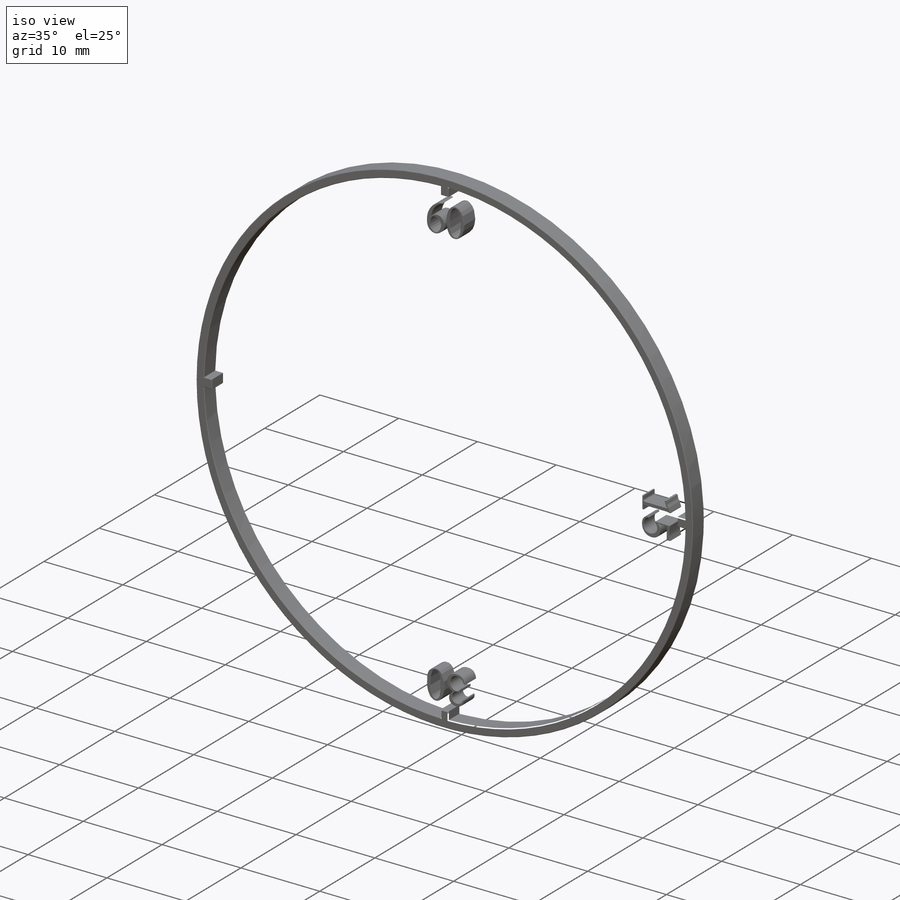
[diagram: iso view]
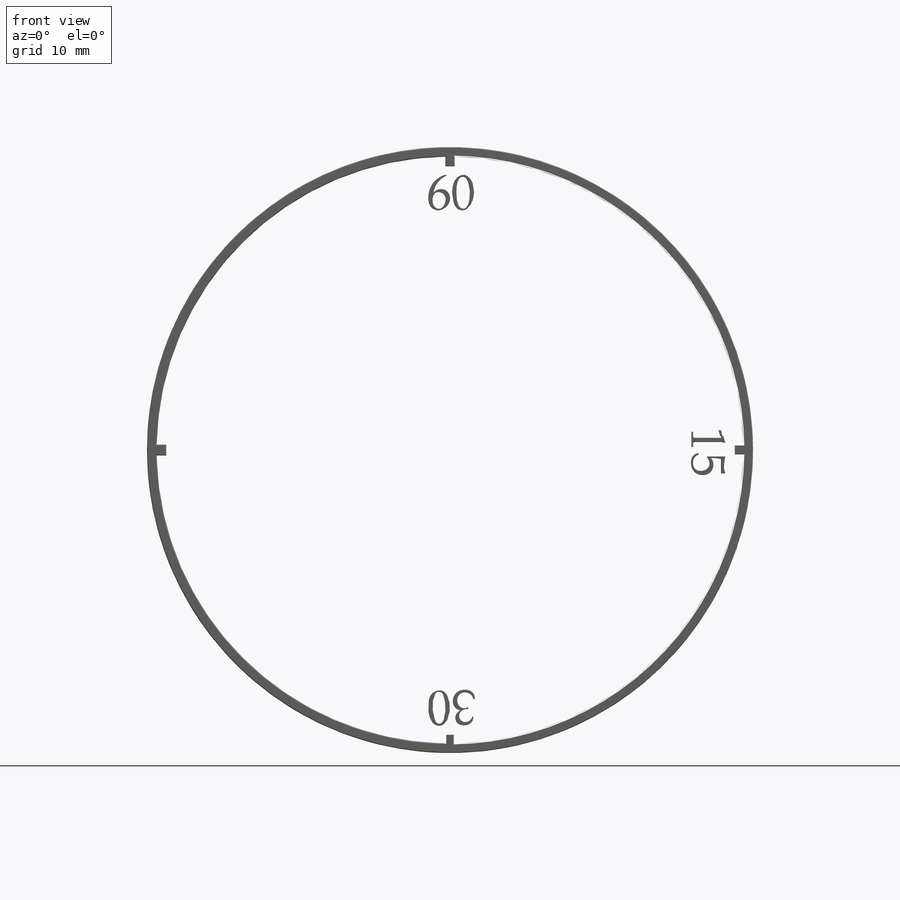
[diagram: front view]
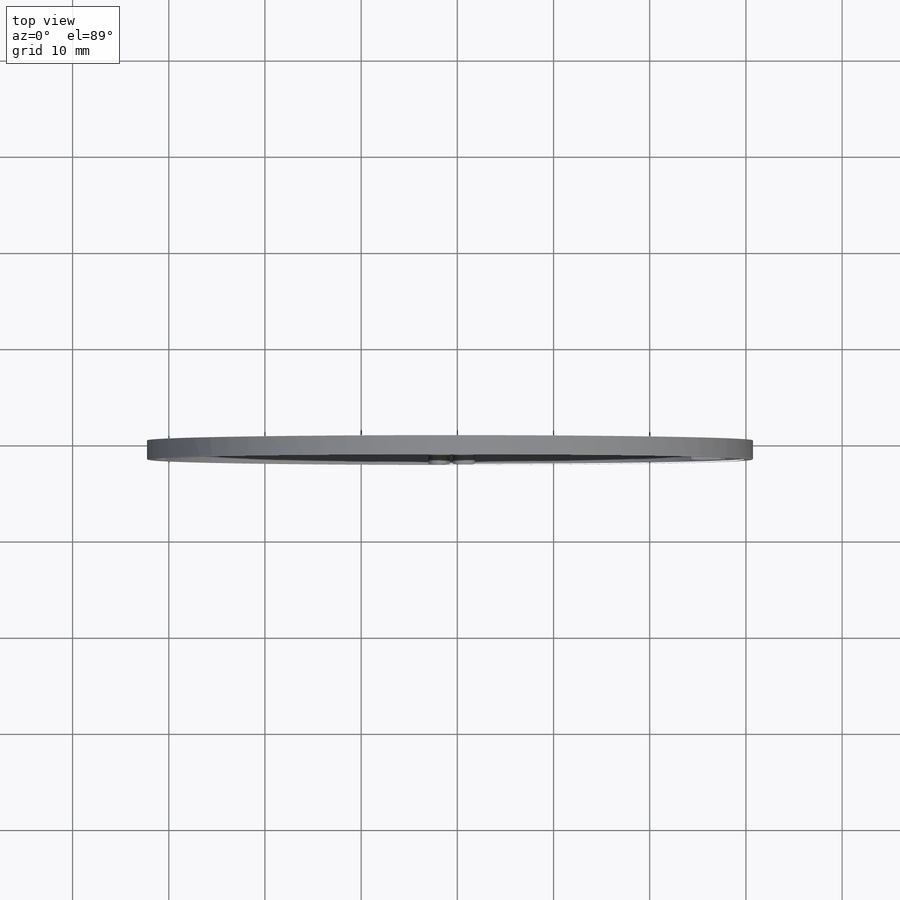
[diagram: top view]
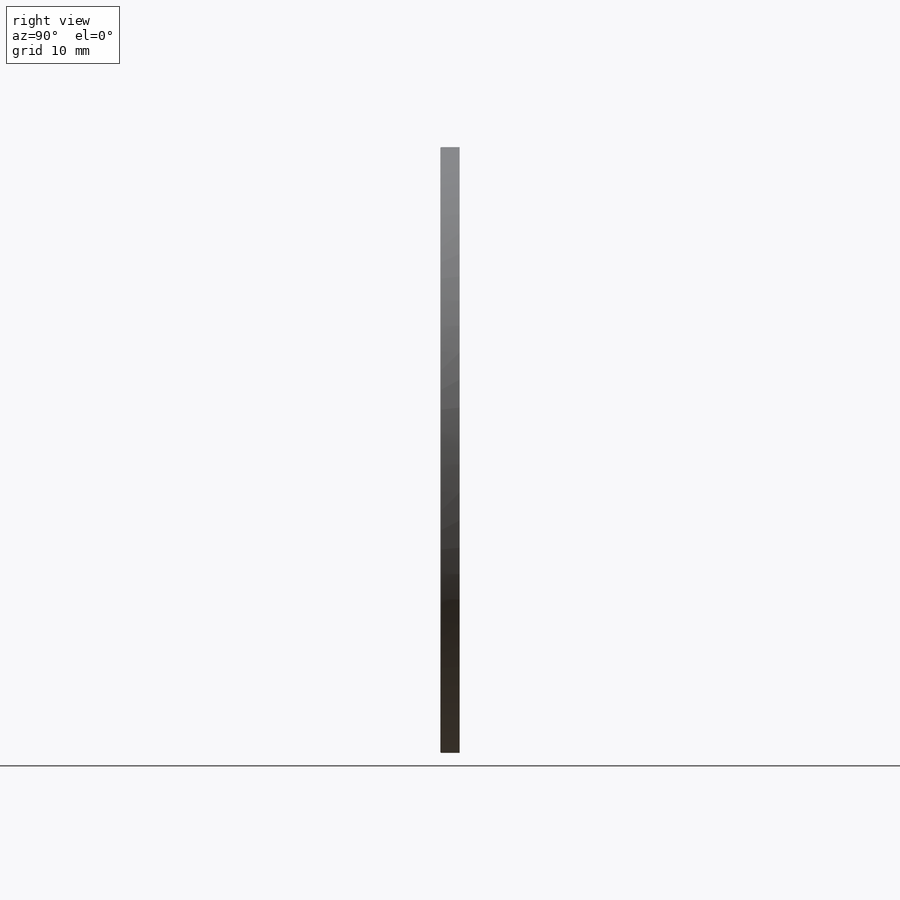
[diagram: right view]
SOLIDWORKS PART (.sldprt)
format: sldprt  version: not decoded by parser v0  size: 3,704,832 bytes
history: native  units: mm
features: reference x1611, fillet x9, plane x3, material x1, sketch x1, extrude x1 (+14 scaffold rows collapsed; 1 parser-record rows omitted)
feature tree (1641):
  scaffold x14  (default folders/planes/origin — collapsed)
  material  "Латунь"
  plane  "Спереди"
  plane  "Сверху"
  plane  "Справа"
  parser-record x1  (decoder bookkeeping rows leaked as tree rows — omitted from the tree; the rows remain in map.json)
  reference  "Импортированная кривая2"
  reference  "Импортированная кривая3"
  reference  "Импортированная кривая4"
  reference  "Импортированная кривая5"
  reference  "Импортированная кривая6"
  reference  "Импортированная кривая7"
  reference  "Импортированная кривая8"
  reference  "Импортированная кривая9"
  reference  "Импортированная кривая10"
  reference  "Импортированная кривая11"
  reference  "Импортированная кривая12"
  reference  "Импортированная кривая13"
  reference  "Импортированная кривая14"
  reference  "Импортированная кривая15"
  reference  "Импортированная кривая16"
  reference  "Импортированная кривая17"
  reference  "Импортированная кривая18"
  reference  "Импортированная кривая19"
  reference  "Импортированная кривая20"
  reference  "Импортированная кривая21"
  reference  "Импортированная кривая22"
  reference  "Импортированная кривая23"
  reference  "Импортированная кривая24"
  reference  "Импортированная кривая25"
  reference  "Импортированная кривая26"
  reference  "Импортированная кривая27"
  reference  "Импортированная кривая28"
  reference  "Импортированная кривая29"
  reference  "Импортированная кривая30"
  reference  "Импортированная кривая31"
  reference  "Импортированная кривая32"
  reference  "Импортированная кривая33"
  reference  "Импортированная кривая34"
  reference  "Импортированная кривая35"
  reference  "Импортированная кривая36"
  reference  "Импортированная кривая37"
  reference  "Импортированная кривая38"
  reference  "Импортированная кривая39"
  reference  "Импортированная кривая40"
  reference  "Импортированная кривая41"
  reference  "Импортированная кривая42"
  reference  "Импортированная кривая43"
  reference  "Импортированная кривая44"
  reference  "Импортированная кривая45"
  reference  "Импортированная кривая46"
  reference  "Импортированная кривая47"
  reference  "Импортированная кривая48"
  reference  "Импортированная кривая49"
  reference  "Импортированная кривая50"
  reference  "Импортированная кривая51"
  reference  "Импортированная кривая52"
  reference  "Импортированная кривая53"
  reference  "Импортированная кривая54"
  reference  "Импортированная кривая55"
  reference  "Импортированная кривая56"
  reference  "Импортированная кривая57"
  reference  "Импортированная кривая58"
  reference  "Импортированная кривая59"
  reference  "Импортированная кривая60"
  reference  "Импортированная кривая61"
  reference  "Импортированная кривая62"
  reference  "Импортированная кривая63"
  reference  "Импортированная кривая64"
  reference  "Импортированная кривая65"
  reference  "Импортированная кривая66"
  reference  "Импортированная кривая67"
  reference  "Импортированная кривая68"
  reference  "Импортированная кривая69"
  reference  "Импортированная кривая70"
  reference  "Импортированная кривая71"
  reference  "Импортированная кривая72"
  reference  "Импортированная кривая73"
  reference  "Импортированная кривая74"
  reference  "Импортированная кривая75"
  reference  "Импортированная кривая76"
  reference  "Импортированная кривая77"
  reference  "Импортированная кривая78"
  reference  "Импортированная кривая79"
  reference  "Импортированная кривая80"
  reference  "Импортированная кривая81"
  reference  "Импортированная кривая82"
  reference  "Импортированная кривая83"
  reference  "Импортированная кривая84"
  reference  "Импортированная кривая85"
  reference  "Импортированная кривая86"
  reference  "Импортированная кривая87"
  reference  "Импортированная кривая88"
  reference  "Импортированная кривая89"
  reference  "Импортированная кривая90"
  reference  "Импортированная кривая91"
  reference  "Импортированная кривая92"
  reference  "Импортированная кривая93"
  reference  "Импортированная кривая94"
  reference  "Импортированная кривая95"
  reference  "Импортированная кривая96"
  reference  "Импортированная кривая97"
  reference  "Импортированная кривая98"
  reference  "Импортированная кривая99"
  reference  "Импортированная кривая100"
  reference  "Импортированная кривая101"
  reference  "Импортированная кривая102"
  reference  "Импортированная кривая103"
  reference  "Импортированная кривая104"
  reference  "Импортированная кривая105"
  reference  "Импортированная кривая106"
  reference  "Импортированная кривая107"
  reference  "Импортированная кривая108"
  reference  "Импортированная кривая109"
  reference  "Импортированная кривая110"
  reference  "Импортированная кривая111"
  reference  "Импортированная кривая112"
  reference  "Импортированная кривая113"
  reference  "Импортированная кривая114"
  reference  "Импортированная кривая115"
  reference  "Импортированная кривая116"
  reference  "Импортированная кривая117"
  reference  "Импортированная кривая118"
  reference  "Импортированная кривая119"
  reference  "Импортированная кривая120"
  reference  "Импортированная кривая121"
  reference  "Импортированная кривая122"
  reference  "Импортированная кривая123"
  reference  "Импортированная кривая124"
  reference  "Импортированная кривая125"
  reference  "Импортированная кривая126"
  reference  "Импортированная кривая127"
  reference  "Импортированная кривая128"
  reference  "Импортированная кривая129"
  reference  "Импортированная кривая130"
  reference  "Импортированная кривая131"
  reference  "Импортированная кривая132"
  reference  "Импортированная кривая133"
  reference  "Импортированная кривая134"
  reference  "Импортированная кривая135"
  reference  "Импортированная кривая136"
  reference  "Импортированная кривая137"
  reference  "Импортированная кривая138"
  reference  "Импортированная кривая139"
  reference  "Импортированная кривая140"
  reference  "Импортированная кривая141"
  reference  "Импортированная кривая142"
  reference  "Импортированная кривая143"
  reference  "Импортированная кривая144"
  reference  "Импортированная кривая145"
  reference  "Импортированная кривая146"
  reference  "Импортированная кривая147"
  reference  "Импортированная кривая148"
  reference  "Импортированная кривая149"
  reference  "Импортированная кривая150"
  reference  "Импортированная кривая151"
  reference  "Импортированная кривая152"
  reference  "Импортированная кривая153"
  reference  "Импортированная кривая154"
  reference  "Импортированная кривая155"
  reference  "Импортированная кривая156"
  reference  "Импортированная кривая157"
  reference  "Импортированная кривая158"
  reference  "Импортированная кривая159"
  reference  "Импортированная кривая160"
  reference  "Импортированная кривая161"
  reference  "Импортированная кривая162"
  reference  "Импортированная кривая163"
  reference  "Импортированная кривая164"
  reference  "Импортированная кривая165"
  reference  "Импортированная кривая166"
  reference  "Импортированная кривая167"
  reference  "Импортированная кривая168"
  reference  "Импортированная кривая169"
  reference  "Импортированная кривая170"
  reference  "Импортированная кривая171"
  reference  "Импортированная кривая172"
  reference  "Импортированная кривая173"
  reference  "Импортированная кривая174"
  reference  "Импортированная кривая175"
  reference  "Импортированная кривая176"
  reference  "Импортированная кривая177"
  reference  "Импортированная кривая178"
  reference  "Импортированная кривая179"
  reference  "Импортированная кривая180"
  reference  "Импортированная кривая181"
  reference  "Импортированная кривая182"
  reference  "Импортированная кривая183"
  reference  "Импортированная кривая184"
  reference  "Импортированная кривая185"
  reference  "Импортированная кривая186"
  reference  "Импортированная кривая187"
  reference  "Импортированная кривая188"
  reference  "Импортированная кривая189"
  reference  "Импортированная кривая190"
  reference  "Импортированная кривая191"
  reference  "Импортированная кривая192"
  reference  "Импортированная кривая193"
  reference  "Импортированная кривая194"
  reference  "Импортированная кривая195"
  reference  "Импортированная кривая196"
  reference  "Импортированная кривая197"
  reference  "Импортированная кривая198"
  reference  "Импортированная кривая199"
  reference  "Импортированная кривая200"
  reference  "Импортированная кривая201"
  reference  "Импортированная кривая202"
  reference  "Импортированная кривая203"
  reference  "Импортированная кривая204"
  reference  "Импортированная кривая205"
  reference  "Импортированная кривая206"
  reference  "Импортированная кривая207"
  reference  "Импортированная кривая208"
  reference  "Импортированная кривая209"
  reference  "Импортированная кривая210"
  reference  "Импортированная кривая211"
  reference  "Импортированная кривая212"
  reference  "Импортированная кривая213"
  reference  "Импортированная кривая214"
  reference  "Импортированная кривая215"
  reference  "Импортированная кривая216"
  reference  "Импортированная кривая217"
  reference  "Импортированная кривая218"
  reference  "Импортированная кривая219"
  reference  "Импортированная кривая220"
  reference  "Импортированная кривая221"
  reference  "Импортированная кривая222"
  reference  "Импортированная кривая223"
  reference  "Импортированная кривая224"
  reference  "Импортированная кривая225"
  reference  "Импортированная кривая226"
  reference  "Импортированная кривая227"
  reference  "Импортированная кривая228"
  reference  "Импортированная кривая229"
  reference  "Импортированная кривая230"
  reference  "Импортированная кривая231"
  reference  "Импортированная кривая232"
  reference  "Импортированная кривая233"
  reference  "Импортированная кривая234"
  reference  "Импортированная кривая235"
  reference  "Импортированная кривая236"
  reference  "Импортированная кривая237"
  reference  "Импортированная кривая238"
  reference  "Импортированная кривая239"
  reference  "Импортированная кривая240"
  reference  "Импортированная кривая241"
  reference  "Импортированная кривая242"
  reference  "Импортированная кривая243"
  reference  "Импортированная кривая244"
  reference  "Импортированная кривая245"
  reference  "Импортированная кривая246"
  reference  "Импортированная кривая247"
  reference  "Импортированная кривая248"
  reference  "Импортированная кривая249"
  reference  "Импортированная кривая250"
  reference  "Импортированная кривая251"
  reference  "Импортированная кривая252"
  reference  "Импортированная кривая253"
  reference  "Импортированная кривая254"
  reference  "Импортированная кривая255"
  reference  "Импортированная кривая256"
  reference  "Импортированная кривая257"
  reference  "Импортированная кривая258"
  reference  "Импортированная кривая259"
  reference  "Импортированная кривая260"
  reference  "Импортированная кривая261"
  reference  "Импортированная кривая262"
  reference  "Импортированная кривая263"
  reference  "Импортированная кривая264"
  reference  "Импортированная кривая265"
  reference  "Импортированная кривая266"
  reference  "Импортированная кривая267"
  reference  "Импортированная кривая268"
  reference  "Импортированная кривая269"
  reference  "Импортированная кривая270"
  reference  "Импортированная кривая271"
  reference  "Импортированная кривая272"
  reference  "Импортированная кривая273"
  reference  "Импортированная кривая274"
  reference  "Импортированная кривая275"
  reference  "Импортированная кривая276"
  reference  "Импортированная кривая277"
  reference  "Импортированная кривая278"
  reference  "Импортированная кривая279"
  reference  "Импортированная кривая280"
  reference  "Импортированная кривая281"
  reference  "Импортированная кривая282"
  reference  "Импортированная кривая283"
  reference  "Импортированная кривая284"
  reference  "Импортированная кривая285"
  reference  "Импортированная кривая286"
  reference  "Импортированная кривая287"
  reference  "Импортированная кривая288"
  reference  "Импортированная кривая289"
  reference  "Импортированная кривая290"
  reference  "Импортированная кривая291"
  reference  "Импортированная кривая292"
  reference  "Импортированная кривая293"
  reference  "Импортированная кривая294"
  reference  "Импортированная кривая295"
  reference  "Импортированная кривая296"
  reference  "Импортированная кривая297"
  reference  "Импортированная кривая298"
  reference  "Импортированная кривая299"
  reference  "Импортированная кривая300"
  reference  "Импортированная кривая301"
  reference  "Импортированная кривая302"
  reference  "Импортированная кривая303"
  reference  "Импортированная кривая304"
  reference  "Импортированная кривая305"
  reference  "Импортированная кривая306"
  reference  "Импортированная кривая307"
  reference  "Импортированная кривая308"
  reference  "Импортированная кривая309"
  reference  "Импортированная кривая310"
  reference  "Импортированная кривая311"
  reference  "Импортированная кривая312"
  reference  "Импортированная кривая313"
  reference  "Импортированная кривая314"
  reference  "Импортированная кривая315"
  reference  "Импортированная кривая316"
  reference  "Импортированная кривая317"
  reference  "Импортированная кривая318"
  reference  "Импортированная кривая319"
  reference  "Импортированная кривая320"
  reference  "Импортированная кривая321"
  reference  "Импортированная кривая322"
  reference  "Импортированная кривая323"
  reference  "Импортированная кривая324"
  reference  "Импортированная кривая325"
  reference  "Импортированная кривая326"
  reference  "Импортированная кривая327"
  reference  "Импортированная кривая328"
  reference  "Импортированная кривая329"
  reference  "Импортированная кривая330"
  reference  "Импортированная кривая331"
  reference  "Импортированная кривая332"
  reference  "Импортированная кривая333"
  reference  "Импортированная кривая334"
  reference  "Импортированная кривая335"
  reference  "Импортированная кривая336"
  reference  "Импортированная кривая337"
  reference  "Импортированная кривая338"
  reference  "Импортированная кривая339"
  reference  "Импортированная кривая340"
  reference  "Импортированная кривая341"
  reference  "Импортированная кривая342"
  reference  "Импортированная кривая343"
  reference  "Импортированная кривая344"
  reference  "Импортированная кривая345"
  reference  "Импортированная кривая346"
  reference  "Импортированная кривая347"
  reference  "Импортированная кривая348"
  reference  "Импортированная кривая349"
  reference  "Импортированная кривая350"
  reference  "Импортированная кривая351"
  reference  "Импортированная кривая352"
  reference  "Импортированная кривая353"
  reference  "Импортированная кривая354"
  reference  "Импортированная кривая355"
  reference  "Импортированная кривая356"
  reference  "Импортированная кривая357"
  reference  "Импортированная кривая358"
  reference  "Импортированная кривая359"
  reference  "Импортированная кривая360"
  reference  "Импортированная кривая361"
  reference  "Импортированная кривая362"
  reference  "Импортированная кривая363"
  reference  "Импортированная кривая364"
  reference  "Импортированная кривая365"
  reference  "Импортированная кривая366"
  reference  "Импортированная кривая367"
  reference  "Импортированная кривая368"
  reference  "Импортированная кривая369"
  reference  "Импортированная кривая370"
  reference  "Импортированная кривая371"
  reference  "Импортированная кривая372"
  reference  "Импортированная кривая373"
  reference  "Импортированная кривая374"
  reference  "Импортированная кривая375"
  reference  "Импортированная кривая376"
  reference  "Импортированная кривая377"
  reference  "Импортированная кривая378"
  reference  "Импортированная кривая379"
  reference  "Импортированная кривая380"
  reference  "Импортированная кривая381"
  reference  "Импортированная кривая382"
  reference  "Импортированная кривая383"
  reference  "Импортированная кривая384"
  reference  "Импортированная кривая385"
  reference  "Импортированная кривая386"
  reference  "Импортированная кривая387"
  reference  "Импортированная кривая388"
  reference  "Импортированная кривая389"
  reference  "Импортированная кривая390"
  reference  "Импортированная кривая391"
  reference  "Импортированная кривая392"
  reference  "Импортированная кривая393"
  reference  "Импортированная кривая394"
  reference  "Импортированная кривая395"
  reference  "Импортированная кривая396"
  reference  "Импортированная кривая397"
  reference  "Импортированная кривая398"
  reference  "Импортированная кривая399"
  reference  "Импортированная кривая400"
  reference  "Импортированная кривая401"
  reference  "Импортированная кривая402"
  reference  "Импортированная кривая403"
  reference  "Импортированная кривая404"
  reference  "Импортированная кривая405"
  reference  "Импортированная кривая406"
  reference  "Импортированная кривая407"
  reference  "Импортированная кривая408"
  reference  "Импортированная кривая409"
  reference  "Импортированная кривая410"
  reference  "Импортированная кривая411"
  reference  "Импортированная кривая412"
  reference  "Импортированная кривая413"
  reference  "Импортированная кривая414"
  reference  "Импортированная кривая415"
  reference  "Импортированная кривая416"
  reference  "Импортированная кривая417"
  reference  "Импортированная кривая418"
  reference  "Импортированная кривая419"
  reference  "Импортированная кривая420"
  reference  "Импортированная кривая421"
  reference  "Импортированная кривая422"
  reference  "Импортированная кривая423"
  reference  "Импортированная кривая424"
  reference  "Импортированная кривая425"
  reference  "Импортированная кривая426"
  reference  "Импортированная кривая427"
  reference  "Импортированная кривая428"
  reference  "Импортированная кривая429"
  reference  "Импортированная кривая430"
  reference  "Импортированная кривая431"
  reference  "Импортированная кривая432"
  reference  "Импортированная кривая433"
  reference  "Импортированная кривая434"
  reference  "Импортированная кривая435"
  reference  "Импортированная кривая436"
  reference  "Импортированная кривая437"
  reference  "Импортированная кривая438"
  reference  "Импортированная кривая439"
  reference  "Импортированная кривая440"
  reference  "Импортированная кривая441"
  reference  "Импортированная кривая442"
  reference  "Импортированная кривая443"
  reference  "Импортированная кривая444"
  reference  "Импортированная кривая445"
  reference  "Импортированная кривая446"
  reference  "Импортированная кривая447"
  reference  "Импортированная кривая448"
  reference  "Импортированная кривая449"
  reference  "Импортированная кривая450"
  reference  "Импортированная кривая451"
  reference  "Импортированная кривая452"
  reference  "Импортированная кривая453"
  reference  "Импортированная кривая454"
  reference  "Импортированная кривая455"
  reference  "Импортированная кривая456"
  reference  "Импортированная кривая457"
  reference  "Импортированная кривая458"
  reference  "Импортированная кривая459"
  reference  "Импортированная кривая460"
  reference  "Импортированная кривая461"
  reference  "Импортированная кривая462"
  reference  "Импортированная кривая463"
  reference  "Импортированная кривая464"
  reference  "Импортированная кривая465"
  reference  "Импортированная кривая466"
  reference  "Импортированная кривая467"
  reference  "Импортированная кривая468"
  reference  "Импортированная кривая469"
  reference  "Импортированная кривая470"
  reference  "Импортированная кривая471"
  reference  "Импортированная кривая472"
  reference  "Импортированная кривая473"
  reference  "Импортированная кривая474"
  reference  "Импортированная кривая475"
  reference  "Импортированная кривая476"
  reference  "Импортированная кривая477"
  reference  "Импортированная кривая478"
  reference  "Импортированная кривая479"
  reference  "Импортированная кривая480"
  reference  "Импортированная кривая481"
  reference  "Импортированная кривая482"
  reference  "Импортированная кривая483"
  reference  "Импортированная кривая484"
  reference  "Импортированная кривая485"
  reference  "Импортированная кривая486"
  reference  "Импортированная кривая487"
  reference  "Импортированная кривая488"
  reference  "Импортированная кривая489"
  reference  "Импортированная кривая490"
  reference  "Импортированная кривая491"
  reference  "Импортированная кривая492"
  reference  "Импортированная кривая493"
  reference  "Импортированная кривая494"
  reference  "Импортированная кривая495"
  reference  "Импортированная кривая496"
  reference  "Импортированная кривая497"
  reference  "Импортированная кривая498"
  reference  "Импортированная кривая499"
  reference  "Импортированная кривая500"
  reference  "Импортированная кривая501"
  reference  "Импортированная кривая502"
  reference  "Импортированная кривая503"
  reference  "Импортированная кривая504"
  reference  "Импортированная кривая505"
  reference  "Импортированная кривая506"
  reference  "Импортированная кривая507"
  reference  "Импортированная кривая508"
  reference  "Импортированная кривая509"
  reference  "Импортированная кривая510"
  reference  "Импортированная кривая511"
  reference  "Импортированная кривая512"
  reference  "Импортированная кривая513"
  reference  "Импортированная кривая514"
  reference  "Импортированная кривая515"
  reference  "Импортированная кривая516"
  reference  "Импортированная кривая517"
  reference  "Импортированная кривая518"
  reference  "Импортированная кривая519"
  reference  "Импортированная кривая520"
  reference  "Импортированная кривая521"
  reference  "Импортированная кривая522"
  reference  "Импортированная кривая523"
  reference  "Импортированная кривая524"
  reference  "Импортированная кривая525"
  reference  "Импортированная кривая526"
  reference  "Импортированная кривая527"
  reference  "Импортированная кривая528"
  reference  "Импортированная кривая529"
  reference  "Импортированная кривая530"
  reference  "Импортированная кривая531"
  reference  "Импортированная кривая532"
  reference  "Импортированная кривая533"
  reference  "Импортированная кривая534"
  reference  "Импортированная кривая535"
  reference  "Импортированная кривая536"
  reference  "Импортированная кривая537"
  reference  "Импортированная кривая538"
  reference  "Импортированная кривая539"
  reference  "Импортированная кривая540"
  reference  "Импортированная кривая541"
  reference  "Импортированная кривая542"
  reference  "Импортированная кривая543"
  reference  "Импортированная кривая544"
  reference  "Импортированная кривая545"
  reference  "Импортированная кривая546"
  reference  "Импортированная кривая547"
  reference  "Импортированная кривая548"
  reference  "Импортированная кривая549"
  reference  "Импортированная кривая550"
  reference  "Импортированная кривая551"
  reference  "Импортированная кривая552"
  reference  "Импортированная кривая553"
  reference  "Импортированная кривая554"
  reference  "Импортированная кривая555"
  reference  "Импортированная кривая556"
  reference  "Импортированная кривая557"
  reference  "Импортированная кривая558"
  reference  "Импортированная кривая559"
  reference  "Импортированная кривая560"
  reference  "Импортированная кривая561"
  reference  "Импортированная кривая562"
  reference  "Импортированная кривая563"
  reference  "Импортированная кривая564"
  reference  "Импортированная кривая565"
  reference  "Импортированная кривая566"
  reference  "Импортированная кривая567"
  reference  "Импортированная кривая568"
  reference  "Импортированная кривая569"
  reference  "Импортированная кривая570"
  reference  "Импортированная кривая571"
  reference  "Импортированная кривая572"
  reference  "Импортированная кривая573"
  reference  "Импортированная кривая574"
  reference  "Импортированная кривая575"
  reference  "Импортированная кривая576"
  reference  "Импортированная кривая577"
  reference  "Импортированная кривая578"
  reference  "Импортированная кривая579"
  reference  "Импортированная кривая580"
  reference  "Импортированная кривая581"
  reference  "Импортированная кривая582"
  reference  "Импортированная кривая583"
  reference  "Импортированная кривая584"
  reference  "Импортированная кривая585"
  reference  "Импортированная кривая586"
  reference  "Импортированная кривая587"
  reference  "Импортированная кривая588"
  reference  "Импортированная кривая589"
  reference  "Импортированная кривая590"
  reference  "Импортированная кривая591"
  reference  "Импортированная кривая592"
  reference  "Импортированная кривая593"
  reference  "Импортированная кривая594"
  reference  "Импортированная кривая595"
  reference  "Импортированная кривая596"
  reference  "Импортированная кривая597"
  reference  "Импортированная кривая598"
  reference  "Импортированная кривая599"
  reference  "Импортированная кривая600"
  reference  "Импортированная кривая601"
  reference  "Импортированная кривая602"
  reference  "Импортированная кривая603"
  reference  "Импортированная кривая604"
  reference  "Импортированная кривая605"
  reference  "Импортированная кривая606"
  reference  "Импортированная кривая607"
  reference  "Импортированная кривая608"
  reference  "Импортированная кривая609"
  reference  "Импортированная кривая610"
  reference  "Импортированная кривая611"
  reference  "Импортированная кривая612"
  reference  "Импортированная кривая613"
  reference  "Импортированная кривая614"
  reference  "Импортированная кривая615"
  reference  "Импортированная кривая616"
  reference  "Импортированная кривая617"
  reference  "Импортированная кривая618"
  reference  "Импортированная кривая619"
  reference  "Импортированная кривая620"
  reference  "Импортированная кривая621"
  reference  "Импортированная кривая622"
  reference  "Импортированная кривая623"
  reference  "Импортированная кривая624"
  reference  "Импортированная кривая625"
  reference  "Импортированная кривая626"
  reference  "Импортированная кривая627"
  reference  "Импортированная кривая628"
  reference  "Импортированная кривая629"
  reference  "Импортированная кривая630"
  reference  "Импортированная кривая631"
  reference  "Импортированная кривая632"
  reference  "Импортированная кривая633"
  reference  "Импортированная кривая634"
  reference  "Импортированная кривая635"
  reference  "Импортированная кривая636"
  reference  "Импортированная кривая637"
  reference  "Импортированная кривая638"
  reference  "Импортированная кривая639"
  reference  "Импортированная кривая640"
  reference  "Импортированная кривая641"
  reference  "Импортированная кривая642"
  reference  "Импортированная кривая643"
  reference  "Импортированная кривая644"
  reference  "Импортированная кривая645"
  reference  "Импортированная кривая646"
  reference  "Импортированная кривая647"
  reference  "Импортированная кривая648"
  reference  "Импортированная кривая649"
  reference  "Импортированная кривая650"
  reference  "Импортированная кривая651"
  reference  "Импортированная кривая652"
  reference  "Импортированная кривая653"
  reference  "Импортированная кривая654"
  reference  "Импортированная кривая655"
  reference  "Импортированная кривая656"
  reference  "Импортированная кривая657"
  reference  "Импортированная кривая658"
  reference  "Импортированная кривая659"
  reference  "Импортированная кривая660"
  reference  "Импортированная кривая661"
  reference  "Импортированная кривая662"
  reference  "Импортированная кривая663"
  reference  "Импортированная кривая664"
  reference  "Импортированная кривая665"
  reference  "Импортированная кривая666"
  reference  "Импортированная кривая667"
  reference  "Импортированная кривая668"
  reference  "Импортированная кривая669"
  reference  "Импортированная кривая670"
  reference  "Импортированная кривая671"
  reference  "Импортированная кривая672"
  reference  "Импортированная кривая673"
  reference  "Импортированная кривая674"
  reference  "Импортированная кривая675"
  reference  "Импортированная кривая676"
  reference  "Импортированная кривая677"
  reference  "Импортированная кривая678"
  reference  "Импортированная кривая679"
  reference  "Импортированная кривая680"
  reference  "Импортированная кривая681"
  reference  "Импортированная кривая682"
  reference  "Импортированная кривая683"
  reference  "Импортированная кривая684"
  reference  "Импортированная кривая685"
  reference  "Импортированная кривая686"
  reference  "Импортированная кривая687"
  reference  "Импортированная кривая688"
  reference  "Импортированная кривая689"
  reference  "Импортированная кривая690"
  reference  "Импортированная кривая691"
  reference  "Импортированная кривая692"
  reference  "Импортированная кривая693"
  reference  "Импортированная кривая694"
  reference  "Импортированная кривая695"
  reference  "Импортированная кривая696"
  reference  "Импортированная кривая697"
  reference  "Импортированная кривая698"
  reference  "Импортированная кривая699"
  reference  "Импортированная кривая700"
  reference  "Импортированная кривая701"
  reference  "Импортированная кривая702"
  reference  "Импортированная кривая703"
  reference  "Импортированная кривая704"
  reference  "Импортированная кривая705"
  reference  "Импортированная кривая706"
  reference  "Импортированная кривая707"
  reference  "Импортированная кривая708"
  reference  "Импортированная кривая709"
  reference  "Импортированная кривая710"
  reference  "Импортированная кривая711"
  reference  "Импортированная кривая712"
  reference  "Импортированная кривая713"
  reference  "Импортированная кривая714"
  reference  "Импортированная кривая715"
  reference  "Импортированная кривая716"
  reference  "Импортированная кривая717"
  reference  "Импортированная кривая718"
  reference  "Импортированная кривая719"
  reference  "Импортированная кривая720"
  reference  "Импортированная кривая721"
  reference  "Импортированная кривая722"
  reference  "Импортированная кривая723"
  reference  "Импортированная кривая724"
  reference  "Импортированная кривая725"
  reference  "Импортированная кривая726"
  reference  "Импортированная кривая727"
  reference  "Импортированная кривая728"
  reference  "Импортированная кривая729"
  reference  "Импортированная кривая730"
  reference  "Импортированная кривая731"
  reference  "Импортированная кривая732"
  reference  "Импортированная кривая733"
  reference  "Импортированная кривая734"
  reference  "Импортированная кривая735"
  reference  "Импортированная кривая736"
  reference  "Импортированная кривая737"
  reference  "Импортированная кривая738"
  reference  "Импортированная кривая739"
  reference  "Импортированная кривая740"
  reference  "Импортированная кривая741"
  reference  "Импортированная кривая742"
  reference  "Импортированная кривая743"
  reference  "Импортированная кривая744"
  reference  "Импортированная кривая745"
  reference  "Импортированная кривая746"
  reference  "Импортированная кривая747"
  reference  "Импортированная кривая748"
  reference  "Импортированная кривая749"
  reference  "Импортированная кривая750"
  reference  "Импортированная кривая751"
  reference  "Импортированная кривая752"
  reference  "Импортированная кривая753"
  reference  "Импортированная кривая754"
  reference  "Импортированная кривая755"
  reference  "Импортированная кривая756"
  reference  "Импортированная кривая757"
  reference  "Импортированная кривая758"
  reference  "Импортированная кривая759"
  reference  "Импортированная кривая760"
  reference  "Импортированная кривая761"
  reference  "Импортированная кривая762"
  reference  "Импортированная кривая763"
  reference  "Импортированная кривая764"
  reference  "Импортированная кривая765"
  reference  "Импортированная кривая766"
  reference  "Импортированная кривая767"
  reference  "Импортированная кривая768"
  reference  "Импортированная кривая769"
  reference  "Импортированная кривая770"
  reference  "Импортированная кривая771"
  reference  "Импортированная кривая772"
  reference  "Импортированная кривая773"
  reference  "Импортированная кривая774"
  reference  "Импортированная кривая775"
  reference  "Импортированная кривая776"
  reference  "Импортированная кривая777"
  reference  "Импортированная кривая778"
  reference  "Импортированная кривая779"
  reference  "Импортированная кривая780"
  reference  "Импортированная кривая781"
  reference  "Импортированная кривая782"
  reference  "Импортированная кривая783"
  reference  "Импортированная кривая784"
  reference  "Импортированная кривая785"
  reference  "Импортированная кривая786"
  reference  "Импортированная кривая787"
  reference  "Импортированная кривая788"
  reference  "Импортированная кривая789"
  reference  "Импортированная кривая790"
  reference  "Импортированная кривая791"
  reference  "Импортированная кривая792"
  reference  "Импортированная кривая793"
  reference  "Импортированная кривая794"
  reference  "Импортированная кривая795"
  reference  "Импортированная кривая796"
  reference  "Импортированная кривая797"
  reference  "Импортированная кривая798"
  reference  "Импортированная кривая799"
  reference  "Импортированная кривая800"
  reference  "Импортированная кривая801"
  reference  "Импортированная кривая802"
  reference  "Импортированная кривая803"
  reference  "Импортированная кривая804"
  reference  "Импортированная кривая805"
  reference  "Импортированная кривая806"
  reference  "Импортированная кривая807"
  reference  "Импортированная кривая808"
  reference  "Импортированная кривая809"
  reference  "Импортированная кривая810"
  reference  "Импортированная кривая811"
  reference  "Импортированная кривая812"
  reference  "Импортированная кривая813"
  reference  "Импортированная кривая814"
  reference  "Импортированная кривая815"
  reference  "Импортированная кривая816"
  reference  "Импортированная кривая817"
  reference  "Импортированная кривая818"
  reference  "Импортированная кривая819"
  reference  "Импортированная кривая820"
  reference  "Импортированная кривая821"
  reference  "Импортированная кривая822"
  reference  "Импортированная кривая823"
  reference  "Импортированная кривая824"
  reference  "Импортированная кривая825"
  reference  "Импортированная кривая826"
  reference  "Импортированная кривая827"
  reference  "Импортированная кривая828"
  reference  "Импортированная кривая829"
  reference  "Импортированная кривая830"
  reference  "Импортированная кривая831"
  reference  "Импортированная кривая832"
  reference  "Импортированная кривая833"
  reference  "Импортированная кривая834"
  reference  "Импортированная кривая835"
  reference  "Импортированная кривая836"
  reference  "Импортированная кривая837"
  reference  "Импортированная кривая838"
  reference  "Импортированная кривая839"
  reference  "Импортированная кривая840"
  reference  "Импортированная кривая841"
  reference  "Импортированная кривая842"
  reference  "Импортированная кривая843"
  reference  "Импортированная кривая844"
  reference  "Импортированная кривая845"
  reference  "Импортированная кривая846"
  reference  "Импортированная кривая847"
  reference  "Импортированная кривая848"
  reference  "Импортированная кривая849"
  reference  "Импортированная кривая850"
  reference  "Импортированная кривая851"
  reference  "Импортированная кривая852"
  reference  "Импортированная кривая853"
  reference  "Импортированная кривая854"
  reference  "Импортированная кривая855"
  reference  "Импортированная кривая856"
  reference  "Импортированная кривая857"
  reference  "Импортированная кривая858"
  reference  "Импортированная кривая859"
  reference  "Импортированная кривая860"
  reference  "Импортированная кривая861"
  reference  "Импортированная кривая862"
  reference  "Импортированная кривая863"
  reference  "Импортированная кривая864"
  reference  "Импортированная кривая865"
  reference  "Импортированная кривая866"
  reference  "Импортированная кривая867"
  reference  "Импортированная кривая868"
  reference  "Импортированная кривая869"
  reference  "Импортированная кривая870"
  reference  "Импортированная кривая871"
  reference  "Импортированная кривая872"
  reference  "Импортированная кривая873"
  reference  "Импортированная кривая874"
  reference  "Импортированная кривая875"
  reference  "Импортированная кривая876"
  reference  "Импортированная кривая877"
  reference  "Импортированная кривая878"
  reference  "Импортированная кривая879"
  reference  "Импортированная кривая880"
  reference  "Импортированная кривая881"
  reference  "Импортированная кривая882"
  reference  "Импортированная кривая883"
  reference  "Импортированная кривая884"
  reference  "Импортированная кривая885"
  reference  "Импортированная кривая886"
  reference  "Импортированная кривая887"
  reference  "Импортированная кривая888"
  reference  "Импортированная кривая889"
  reference  "Импортированная кривая890"
  reference  "Импортированная кривая891"
  reference  "Импортированная кривая892"
  reference  "Импортированная кривая893"
  reference  "Импортированная кривая894"
  reference  "Импортированная кривая895"
  reference  "Импортированная кривая896"
  reference  "Импортированная кривая897"
  reference  "Импортированная кривая898"
  reference  "Импортированная кривая899"
  reference  "Импортированная кривая900"
  reference  "Импортированная кривая901"
  reference  "Импортированная кривая902"
  reference  "Импортированная кривая903"
  reference  "Импортированная кривая904"
  reference  "Импортированная кривая905"
  reference  "Импортированная кривая906"
  reference  "Импортированная кривая907"
  reference  "Импортированная кривая908"
  reference  "Импортированная кривая909"
  reference  "Импортированная кривая910"
  reference  "Импортированная кривая911"
  reference  "Импортированная кривая912"
  reference  "Импортированная кривая913"
  reference  "Импортированная кривая914"
  reference  "Импортированная кривая915"
  reference  "Импортированная кривая916"
  reference  "Импортированная кривая917"
  reference  "Импортированная кривая918"
  reference  "Импортированная кривая919"
  reference  "Импортированная кривая920"
  reference  "Импортированная кривая921"
  reference  "Импортированная кривая922"
  reference  "Импортированная кривая923"
  reference  "Импортированная кривая924"
  reference  "Импортированная кривая925"
  reference  "Импортированная кривая926"
  reference  "Импортированная кривая927"
  reference  "Импортированная кривая928"
  reference  "Импортированная кривая929"
  reference  "Импортированная кривая930"
  reference  "Импортированная кривая931"
  reference  "Импортированная кривая932"
  reference  "Импортированная кривая933"
  reference  "Импортированная кривая934"
  reference  "Импортированная кривая935"
  reference  "Импортированная кривая936"
  reference  "Импортированная кривая937"
  reference  "Импортированная кривая938"
  reference  "Импортированная кривая939"
  reference  "Импортированная кривая940"
  reference  "Импортированная кривая941"
  reference  "Импортированная кривая942"
  reference  "Импортированная кривая943"
  reference  "Импортированная кривая944"
  reference  "Импортированная кривая945"
  reference  "Импортированная кривая946"
  reference  "Импортированная кривая947"
  reference  "Импортированная кривая948"
  reference  "Импортированная кривая949"
  reference  "Импортированная кривая950"
  reference  "Импортированная кривая951"
  reference  "Импортированная кривая952"
  reference  "Импортированная кривая953"
  reference  "Импортированная кривая954"
  reference  "Импортированная кривая955"
  reference  "Импортированная кривая956"
  reference  "Импортированная кривая957"
  reference  "Импортированная кривая958"
  reference  "Импортированная кривая959"
  reference  "Импортированная кривая960"
  reference  "Импортированная кривая961"
  reference  "Импортированная кривая962"
  reference  "Импортированная кривая963"
  reference  "Импортированная кривая964"
  reference  "Импортированная кривая965"
  reference  "Импортированная кривая966"
  reference  "Импортированная кривая967"
  reference  "Импортированная кривая968"
  reference  "Импортированная кривая969"
  reference  "Импортированная кривая970"
  reference  "Импортированная кривая971"
  reference  "Импортированная кривая972"
  reference  "Импортированная кривая973"
  reference  "Импортированная кривая974"
  reference  "Импортированная кривая975"
  reference  "Импортированная кривая976"
  reference  "Импортированная кривая977"
  reference  "Импортированная кривая978"
  reference  "Импортированная кривая979"
  reference  "Импортированная кривая980"
  reference  "Импортированная кривая981"
  reference  "Импортированная кривая982"
  reference  "Импортированная кривая983"
  reference  "Импортированная кривая984"
  reference  "Импортированная кривая985"
  reference  "Импортированная кривая986"
  reference  "Импортированная кривая987"
  reference  "Импортированная кривая988"
  reference  "Импортированная кривая989"
  reference  "Импортированная кривая990"
  reference  "Импортированная кривая991"
  reference  "Импортированная кривая992"
  reference  "Импортированная кривая993"
  reference  "Импортированная кривая994"
  reference  "Импортированная кривая995"
  reference  "Импортированная кривая996"
  reference  "Импортированная кривая997"
  reference  "Импортированная кривая998"
  reference  "Импортированная кривая999"
  reference  "Импортированная кривая1000"
  reference  "Импортированная кривая1001"
  reference  "Импортированная кривая1002"
  reference  "Импортированная кривая1003"
  reference  "Импортированная кривая1004"
  reference  "Импортированная кривая1005"
  reference  "Импортированная кривая1006"
  reference  "Импортированная кривая1007"
  reference  "Импортированная кривая1008"
  reference  "Импортированная кривая1009"
  reference  "Импортированная кривая1010"
  reference  "Импортированная кривая1011"
  reference  "Импортированная кривая1012"
  reference  "Импортированная кривая1013"
  reference  "Импортированная кривая1014"
  reference  "Импортированная кривая1015"
  reference  "Импортированная кривая1016"
  reference  "Импортированная кривая1017"
  reference  "Импортированная кривая1018"
  reference  "Импортированная кривая1019"
  reference  "Импортированная кривая1020"
  reference  "Импортированная кривая1021"
  reference  "Импортированная кривая1022"
  reference  "Импортированная кривая1023"
  reference  "Импортированная кривая1024"
  reference  "Импортированная кривая1025"
  reference  "Импортированная кривая1026"
  reference  "Импортированная кривая1027"
  reference  "Импортированная кривая1028"
  reference  "Импортированная кривая1029"
  reference  "Импортированная кривая1030"
  reference  "Импортированная кривая1031"
  reference  "Импортированная кривая1032"
  reference  "Импортированная кривая1033"
  reference  "Импортированная кривая1034"
  reference  "Импортированная кривая1035"
  reference  "Импортированная кривая1036"
  reference  "Импортированная кривая1037"
  reference  "Импортированная кривая1038"
  reference  "Импортированная кривая1039"
  reference  "Импортированная кривая1040"
  reference  "Импортированная кривая1041"
  reference  "Импортированная кривая1042"
  reference  "Импортированная кривая1043"
  reference  "Импортированная кривая1044"
  reference  "Импортированная кривая1045"
  reference  "Импортированная кривая1046"
  reference  "Импортированная кривая1047"
  reference  "Импортированная кривая1048"
  reference  "Импортированная кривая1049"
  reference  "Импортированная кривая1050"
  reference  "Импортированная кривая1051"
  reference  "Импортированная кривая1052"
  reference  "Импортированная кривая1053"
  reference  "Импортированная кривая1054"
  reference  "Импортированная кривая1055"
  reference  "Импортированная кривая1056"
  reference  "Импортированная кривая1057"
  reference  "Импортированная кривая1058"
  reference  "Импортированная кривая1059"
  reference  "Импортированная кривая1060"
  reference  "Импортированная кривая1061"
  reference  "Импортированная кривая1062"
  reference  "Импортированная кривая1063"
  reference  "Импортированная кривая1064"
  reference  "Импортированная кривая1065"
  reference  "Импортированная кривая1066"
  reference  "Импортированная кривая1067"
  reference  "Импортированная кривая1068"
  reference  "Импортированная кривая1069"
  reference  "Импортированная кривая1070"
  reference  "Импортированная кривая1071"
  reference  "Импортированная кривая1072"
  reference  "Импортированная кривая1073"
  reference  "Импортированная кривая1074"
  reference  "Импортированная кривая1075"
  reference  "Импортированная кривая1076"
  reference  "Импортированная кривая1077"
  reference  "Импортированная кривая1078"
  reference  "Импортированная кривая1079"
  reference  "Импортированная кривая1080"
  reference  "Импортированная кривая1081"
  reference  "Импортированная кривая1082"
  reference  "Импортированная кривая1083"
  reference  "Импортированная кривая1084"
  reference  "Импортированная кривая1085"
  reference  "Импортированная кривая1086"
  reference  "Импортированная кривая1087"
  reference  "Импортированная кривая1088"
  reference  "Импортированная кривая1089"
  reference  "Импортированная кривая1090"
  reference  "Импортированная кривая1091"
  reference  "Импортированная кривая1092"
  reference  "Импортированная кривая1093"
  reference  "Импортированная кривая1094"
  reference  "Импортированная кривая1095"
  reference  "Импортированная кривая1096"
  reference  "Импортированная кривая1097"
  reference  "Импортированная кривая1098"
  reference  "Импортированная кривая1099"
  reference  "Импортированная кривая1100"
  reference  "Импортированная кривая1101"
  reference  "Импортированная кривая1102"
  reference  "Импортированная кривая1103"
  reference  "Импортированная кривая1104"
  reference  "Импортированная кривая1105"
  reference  "Импортированная кривая1106"
  reference  "Импортированная кривая1107"
  reference  "Импортированная кривая1108"
  reference  "Импортированная кривая1109"
  reference  "Импортированная кривая1110"
  reference  "Импортированная кривая1111"
  reference  "Импортированная кривая1112"
  reference  "Импортированная кривая1113"
  reference  "Импортированная кривая1114"
  reference  "Импортированная кривая1115"
  reference  "Импортированная кривая1116"
  reference  "Импортированная кривая1117"
  reference  "Импортированная кривая1118"
  reference  "Импортированная кривая1119"
  reference  "Импортированная кривая1120"
  reference  "Импортированная кривая1121"
  reference  "Импортированная кривая1122"
  reference  "Импортированная кривая1123"
  reference  "Импортированная кривая1124"
  reference  "Импортированная кривая1125"
  reference  "Импортированная кривая1126"
  reference  "Импортированная кривая1127"
  reference  "Импортированная кривая1128"
  reference  "Импортированная кривая1129"
  reference  "Импортированная кривая1130"
  reference  "Импортированная кривая1131"
  reference  "Импортированная кривая1132"
  reference  "Импортированная кривая1133"
  reference  "Импортированная кривая1134"
  reference  "Импортированная кривая1135"
  reference  "Импортированная кривая1136"
  reference  "Импортированная кривая1137"
  reference  "Импортированная кривая1138"
  reference  "Импортированная кривая1139"
  reference  "Импортированная кривая1140"
  reference  "Импортированная кривая1141"
  reference  "Импортированная кривая1142"
  reference  "Импортированная кривая1143"
  reference  "Импортированная кривая1144"
  reference  "Импортированная кривая1145"
  reference  "Импортированная кривая1146"
  reference  "Импортированная кривая1147"
  reference  "Импортированная кривая1148"
  reference  "Импортированная кривая1149"
  reference  "Импортированная кривая1150"
  reference  "Импортированная кривая1151"
  reference  "Импортированная кривая1152"
  reference  "Импортированная кривая1153"
  reference  "Импортированная кривая1154"
  reference  "Импортированная кривая1155"
  reference  "Импортированная кривая1156"
  reference  "Импортированная кривая1157"
  reference  "Импортированная кривая1158"
  reference  "Импортированная кривая1159"
  reference  "Импортированная кривая1160"
  reference  "Импортированная кривая1161"
  reference  "Импортированная кривая1162"
  reference  "Импортированная кривая1163"
  reference  "Импортированная кривая1164"
  reference  "Импортированная кривая1165"
  reference  "Импортированная кривая1166"
  reference  "Импортированная кривая1167"
  reference  "Импортированная кривая1168"
  reference  "Импортированная кривая1169"
  reference  "Импортированная кривая1170"
  reference  "Импортированная кривая1171"
  reference  "Импортированная кривая1172"
  reference  "Импортированная кривая1173"
  reference  "Импортированная кривая1174"
  reference  "Импортированная кривая1175"
  reference  "Импортированная кривая1176"
  reference  "Импортированная кривая1177"
  reference  "Импортированная кривая1178"
  reference  "Импортированная кривая1179"
  reference  "Импортированная кривая1180"
  reference  "Импортированная кривая1181"
  reference  "Импортированная кривая1182"
  reference  "Импортированная кривая1183"
  reference  "Импортированная кривая1184"
  reference  "Импортированная кривая1185"
  reference  "Импортированная кривая1186"
  reference  "Импортированная кривая1187"
  reference  "Импортированная кривая1188"
  reference  "Импортированная кривая1189"
  reference  "Импортированная кривая1190"
  reference  "Импортированная кривая1191"
  reference  "Импортированная кривая1192"
  reference  "Импортированная кривая1193"
  reference  "Импортированная кривая1194"
  reference  "Импортированная кривая1195"
  reference  "Импортированная кривая1196"
  reference  "Импортированная кривая1197"
  reference  "Импортированная кривая1198"
  reference  "Импортированная кривая1199"
  reference  "Импортированная кривая1200"
  reference  "Импортированная кривая1201"
  reference  "Импортированная кривая1202"
  reference  "Импортированная кривая1203"
  reference  "Импортированная кривая1204"
  reference  "Импортированная кривая1205"
  reference  "Импортированная кривая1206"
  reference  "Импортированная кривая1207"
  reference  "Импортированная кривая1208"
  reference  "Импортированная кривая1209"
  reference  "Импортированная кривая1210"
  reference  "Импортированная кривая1211"
  reference  "Импортированная кривая1212"
  reference  "Импортированная кривая1213"
  reference  "Импортированная кривая1214"
  reference  "Импортированная кривая1215"
  reference  "Импортированная кривая1216"
  reference  "Импортированная кривая1217"
  reference  "Импортированная кривая1218"
  reference  "Импортированная кривая1219"
  reference  "Импортированная кривая1220"
  reference  "Импортированная кривая1221"
  reference  "Импортированная кривая1222"
  reference  "Импортированная кривая1223"
  reference  "Импортированная кривая1224"
  reference  "Импортированная кривая1225"
  reference  "Импортированная кривая1226"
  reference  "Импортированная кривая1227"
  reference  "Импортированная кривая1228"
  reference  "Импортированная кривая1229"
  reference  "Импортированная кривая1230"
  reference  "Импортированная кривая1231"
  reference  "Импортированная кривая1232"
  reference  "Импортированная кривая1233"
  reference  "Импортированная кривая1234"
  reference  "Импортированная кривая1235"
  reference  "Импортированная кривая1236"
  reference  "Импортированная кривая1237"
  reference  "Импортированная кривая1238"
  reference  "Импортированная кривая1239"
  reference  "Импортированная кривая1240"
  reference  "Импортированная кривая1241"
  reference  "Импортированная кривая1242"
  reference  "Импортированная кривая1243"
  reference  "Импортированная кривая1244"
  reference  "Импортированная кривая1245"
  reference  "Импортированная кривая1246"
  reference  "Импортированная кривая1247"
  reference  "Импортированная кривая1248"
  reference  "Импортированная кривая1249"
  reference  "Импортированная кривая1250"
  reference  "Импортированная кривая1251"
  reference  "Импортированная кривая1252"
  reference  "Импортированная кривая1253"
  reference  "Импортированная кривая1254"
  reference  "Импортированная кривая1255"
  reference  "Импортированная кривая1256"
  reference  "Импортированная кривая1257"
  reference  "Импортированная кривая1258"
  reference  "Импортированная кривая1259"
  reference  "Импортированная кривая1260"
  reference  "Импортированная кривая1261"
  reference  "Импортированная кривая1262"
  reference  "Импортированная кривая1263"
  reference  "Импортированная кривая1264"
  reference  "Импортированная кривая1265"
  reference  "Импортированная кривая1266"
  reference  "Импортированная кривая1267"
  reference  "Импортированная кривая1268"
  reference  "Импортированная кривая1269"
  reference  "Импортированная кривая1270"
  reference  "Импортированная кривая1271"
  reference  "Импортированная кривая1272"
  reference  "Импортированная кривая1273"
  reference  "Импортированная кривая1274"
  reference  "Импортированная кривая1275"
  reference  "Импортированная кривая1276"
  reference  "Импортированная кривая1277"
  reference  "Импортированная кривая1278"
  reference  "Импортированная кривая1279"
  reference  "Импортированная кривая1280"
  reference  "Импортированная кривая1281"
  reference  "Импортированная кривая1282"
  reference  "Импортированная кривая1283"
  reference  "Импортированная кривая1284"
  reference  "Импортированная кривая1285"
  reference  "Импортированная кривая1286"
  reference  "Импортированная кривая1287"
  reference  "Импортированная кривая1288"
  reference  "Импортированная кривая1289"
  reference  "Импортированная кривая1290"
  reference  "Импортированная кривая1291"
  reference  "Импортированная кривая1292"
  reference  "Импортированная кривая1293"
  reference  "Импортированная кривая1294"
  reference  "Импортированная кривая1295"
  reference  "Импортированная кривая1296"
  reference  "Импортированная кривая1297"
  reference  "Импортированная кривая1298"
  reference  "Импортированная кривая1299"
  reference  "Импортированная кривая1300"
  reference  "Импортированная кривая1301"
  reference  "Импортированная кривая1302"
  reference  "Импортированная кривая1303"
  reference  "Импортированная кривая1304"
  reference  "Импортированная кривая1305"
  reference  "Импортированная кривая1306"
  reference  "Импортированная кривая1307"
  reference  "Импортированная кривая1308"
  reference  "Импортированная кривая1309"
  reference  "Импортированная кривая1310"
  reference  "Импортированная кривая1311"
  reference  "Импортированная кривая1312"
  reference  "Импортированная кривая1313"
  reference  "Импортированная кривая1314"
  reference  "Импортированная кривая1315"
  reference  "Импортированная кривая1316"
  reference  "Импортированная кривая1317"
  reference  "Импортированная кривая1318"
  reference  "Импортированная кривая1319"
  reference  "Импортированная кривая1320"
  reference  "Импортированная кривая1321"
  reference  "Импортированная кривая1322"
  reference  "Импортированная кривая1323"
  reference  "Импортированная кривая1324"
  reference  "Импортированная кривая1325"
  reference  "Импортированная кривая1326"
  reference  "Импортированная кривая1327"
  reference  "Импортированная кривая1328"
  reference  "Импортированная кривая1329"
  reference  "Импортированная кривая1330"
  reference  "Импортированная кривая1331"
  reference  "Импортированная кривая1332"
  reference  "Импортированная кривая1333"
  reference  "Импортированная кривая1334"
  reference  "Импортированная кривая1335"
  reference  "Импортированная кривая1336"
  reference  "Импортированная кривая1337"
  reference  "Импортированная кривая1338"
  reference  "Импортированная кривая1339"
  reference  "Импортированная кривая1340"
  reference  "Импортированная кривая1341"
  reference  "Импортированная кривая1342"
  reference  "Импортированная кривая1343"
  reference  "Импортированная кривая1344"
  reference  "Импортированная кривая1345"
  reference  "Импортированная кривая1346"
  reference  "Импортированная кривая1347"
  reference  "Импортированная кривая1348"
  reference  "Импортированная кривая1349"
  reference  "Импортированная кривая1350"
  reference  "Импортированная кривая1351"
  reference  "Импортированная кривая1352"
  reference  "Импортированная кривая1353"
  reference  "Импортированная кривая1354"
  reference  "Импортированная кривая1355"
  reference  "Импортированная кривая1356"
  reference  "Импортированная кривая1357"
  reference  "Импортированная кривая1358"
  reference  "Импортированная кривая1359"
  reference  "Импортированная кривая1360"
  reference  "Импортированная кривая1361"
  reference  "Импортированная кривая1362"
  reference  "Импортированная кривая1363"
  reference  "Импортированная кривая1364"
  reference  "Импортированная кривая1365"
  reference  "Импортированная кривая1366"
  reference  "Импортированная кривая1367"
  reference  "Импортированная кривая1368"
  reference  "Импортированная кривая1369"
  reference  "Импортированная кривая1370"
  reference  "Импортированная кривая1371"
  reference  "Импортированная кривая1372"
  reference  "Импортированная кривая1373"
  reference  "Импортированная кривая1374"
  reference  "Импортированная кривая1375"
  reference  "Импортированная кривая1376"
  reference  "Импортированная кривая1377"
  reference  "Импортированная кривая1378"
  reference  "Импортированная кривая1379"
  reference  "Импортированная кривая1380"
  reference  "Импортированная кривая1381"
  reference  "Импортированная кривая1382"
  reference  "Импортированная кривая1383"
  reference  "Импортированная кривая1384"
  reference  "Импортированная кривая1385"
  reference  "Импортированная кривая1386"
  reference  "Импортированная кривая1387"
  reference  "Импортированная кривая1388"
  reference  "Импортированная кривая1389"
  reference  "Импортированная кривая1390"
  reference  "Импортированная кривая1391"
  reference  "Импортированная кривая1392"
  reference  "Импортированная кривая1393"
  reference  "Импортированная кривая1394"
  reference  "Импортированная кривая1395"
  reference  "Импортированная кривая1396"
  reference  "Импортированная кривая1397"
  reference  "Импортированная кривая1398"
  reference  "Импортированная кривая1399"
  reference  "Импортированная кривая1400"
  reference  "Импортированная кривая1401"
  reference  "Импортированная кривая1402"
  reference  "Импортированная кривая1403"
  reference  "Импортированная кривая1404"
  reference  "Импортированная кривая1405"
  reference  "Импортированная кривая1406"
  reference  "Импортированная кривая1407"
  reference  "Импортированная кривая1408"
  reference  "Импортированная кривая1409"
  reference  "Импортированная кривая1410"
  reference  "Импортированная кривая1411"
  reference  "Импортированная кривая1412"
  reference  "Импортированная кривая1413"
  reference  "Импортированная кривая1414"
  reference  "Импортированная кривая1415"
  reference  "Импортированная кривая1416"
  reference  "Импортированная кривая1417"
  reference  "Импортированная кривая1418"
  reference  "Импортированная кривая1419"
  reference  "Импортированная кривая1420"
  reference  "Импортированная кривая1421"
  reference  "Импортированная кривая1422"
  reference  "Импортированная кривая1423"
  reference  "Импортированная кривая1424"
  reference  "Импортированная кривая1425"
  reference  "Импортированная кривая1426"
  reference  "Импортированная кривая1427"
  reference  "Импортированная кривая1428"
  reference  "Импортированная кривая1429"
  reference  "Импортированная кривая1430"
  reference  "Импортированная кривая1431"
  reference  "Импортированная кривая1432"
  reference  "Импортированная кривая1433"
  reference  "Импортированная кривая1434"
  reference  "Импортированная кривая1435"
  reference  "Импортированная кривая1436"
  reference  "Импортированная кривая1437"
  reference  "Импортированная кривая1438"
  reference  "Импортированная кривая1439"
  reference  "Импортированная кривая1440"
  reference  "Импортированная кривая1441"
  reference  "Импортированная кривая1442"
  reference  "Импортированная кривая1443"
  reference  "Импортированная кривая1444"
  reference  "Импортированная кривая1445"
  reference  "Импортированная кривая1446"
  reference  "Импортированная кривая1447"
  reference  "Импортированная кривая1448"
  reference  "Импортированная кривая1449"
  reference  "Импортированная кривая1450"
  reference  "Импортированная кривая1451"
  reference  "Импортированная кривая1452"
  reference  "Импортированная кривая1453"
  reference  "Импортированная кривая1454"
  reference  "Импортированная кривая1455"
  reference  "Импортированная кривая1456"
  reference  "Импортированная кривая1457"
  reference  "Импортированная кривая1458"
  reference  "Импортированная кривая1459"
  reference  "Импортированная кривая1460"
  reference  "Импортированная кривая1461"
  reference  "Импортированная кривая1462"
  reference  "Импортированная кривая1463"
  reference  "Импортированная кривая1464"
  reference  "Импортированная кривая1465"
  reference  "Импортированная кривая1466"
  reference  "Импортированная кривая1467"
  reference  "Импортированная кривая1468"
  reference  "Импортированная кривая1469"
  reference  "Импортированная кривая1470"
  reference  "Импортированная кривая1471"
  reference  "Импортированная кривая1472"
  reference  "Импортированная кривая1473"
  reference  "Импортированная кривая1474"
  reference  "Импортированная кривая1475"
  reference  "Импортированная кривая1476"
  reference  "Импортированная кривая1477"
  reference  "Импортированная кривая1478"
  reference  "Импортированная кривая1479"
  reference  "Импортированная кривая1480"
  reference  "Импортированная кривая1481"
  reference  "Импортированная кривая1482"
  reference  "Импортированная кривая1483"
  reference  "Импортированная кривая1484"
  reference  "Импортированная кривая1485"
  reference  "Импортированная кривая1486"
  reference  "Импортированная кривая1487"
  reference  "Импортированная кривая1488"
  reference  "Импортированная кривая1489"
  reference  "Импортированная кривая1490"
  reference  "Импортированная кривая1491"
  reference  "Импортированная кривая1492"
  reference  "Импортированная кривая1493"
  reference  "Импортированная кривая1494"
  reference  "Импортированная кривая1495"
  reference  "Импортированная кривая1496"
  reference  "Импортированная кривая1497"
  reference  "Импортированная кривая1498"
  reference  "Импортированная кривая1499"
  reference  "Импортированная кривая1500"
  reference  "Импортированная кривая1501"
  reference  "Импортированная кривая1502"
  reference  "Импортированная кривая1503"
  reference  "Импортированная кривая1504"
  reference  "Импортированная кривая1505"
  reference  "Импортированная кривая1506"
  reference  "Импортированная кривая1507"
  reference  "Импортированная кривая1508"
  reference  "Импортированная кривая1509"
  reference  "Импортированная кривая1510"
  reference  "Импортированная кривая1511"
  reference  "Импортированная кривая1512"
  reference  "Импортированная кривая1513"
  reference  "Импортированная кривая1514"
  reference  "Импортированная кривая1515"
  reference  "Импортированная кривая1516"
  reference  "Импортированная кривая1517"
  reference  "Импортированная кривая1518"
  reference  "Импортированная кривая1519"
  reference  "Импортированная кривая1520"
  reference  "Импортированная кривая1521"
  reference  "Импортированная кривая1522"
  reference  "Импортированная кривая1523"
  reference  "Импортированная кривая1524"
  reference  "Импортированная кривая1525"
  reference  "Импортированная кривая1526"
  reference  "Импортированная кривая1527"
  reference  "Импортированная кривая1528"
  reference  "Импортированная кривая1529"
  reference  "Импортированная кривая1530"
  reference  "Импортированная кривая1531"
  reference  "Импортированная кривая1532"
  reference  "Импортированная кривая1533"
  reference  "Импортированная кривая1534"
  reference  "Импортированная кривая1535"
  reference  "Импортированная кривая1536"
  reference  "Импортированная кривая1537"
  reference  "Импортированная кривая1538"
  reference  "Импортированная кривая1539"
  reference  "Импортированная кривая1540"
  reference  "Импортированная кривая1541"
  reference  "Импортированная кривая1542"
  reference  "Импортированная кривая1543"
  reference  "Импортированная кривая1544"
  reference  "Импортированная кривая1545"
  reference  "Импортированная кривая1546"
  reference  "Импортированная кривая1547"
  reference  "Импортированная кривая1548"
  reference  "Импортированная кривая1549"
  reference  "Импортированная кривая1550"
  reference  "Импортированная кривая1551"
  reference  "Импортированная кривая1552"
  reference  "Импортированная кривая1553"
  reference  "Импортированная кривая1554"
  reference  "Импортированная кривая1555"
  reference  "Импортированная кривая1556"
  reference  "Импортированная кривая1557"
  reference  "Импортированная кривая1558"
  reference  "Импортированная кривая1559"
  reference  "Импортированная кривая1560"
  reference  "Импортированная кривая1561"
  reference  "Импортированная кривая1562"
  reference  "Импортированная кривая1563"
  reference  "Импортированная кривая1564"
  reference  "Импортированная кривая1565"
  reference  "Импортированная кривая1566"
  reference  "Импортированная кривая1567"
  reference  "Импортированная кривая1568"
  reference  "Импортированная кривая1569"
  reference  "Импортированная кривая1570"
  reference  "Импортированная кривая1571"
  reference  "Импортированная кривая1572"
  reference  "Импортированная кривая1573"
  reference  "Импортированная кривая1574"
  reference  "Импортированная кривая1575"
  reference  "Импортированная кривая1576"
  reference  "Импортированная кривая1577"
  reference  "Импортированная кривая1578"
  reference  "Импортированная кривая1579"
  reference  "Импортированная кривая1580"
  reference  "Импортированная кривая1581"
  reference  "Импортированная кривая1582"
  reference  "Импортированная кривая1583"
  reference  "Импортированная кривая1584"
  reference  "Импортированная кривая1585"
  reference  "Импортированная кривая1586"
  reference  "Импортированная кривая1587"
  reference  "Импортированная кривая1588"
  reference  "Импортированная кривая1589"
  reference  "Импортированная кривая1590"
  reference  "Импортированная кривая1591"
  reference  "Импортированная кривая1592"
  reference  "Импортированная кривая1593"
  reference  "Импортированная кривая1594"
  reference  "Импортированная кривая1595"
  reference  "Импортированная кривая1596"
  reference  "Импортированная кривая1597"
  reference  "Импортированная кривая1598"
  reference  "Импортированная кривая1599"
  reference  "Импортированная кривая1600"
  reference  "Импортированная кривая1601"
  reference  "Импортированная кривая1602"
  reference  "Импортированная кривая1603"
  reference  "Импортированная кривая1604"
  reference  "Импортированная кривая1605"
  reference  "Импортированная кривая1606"
  reference  "Импортированная кривая1607"
  reference  "Импортированная кривая1608"
  reference  "Импортированная кривая1609"
  reference  "Импортированная кривая1610"
  reference  "Импортированная кривая1611"
  reference  "Импортированная кривая1612"
  sketch  "Эскиз1"
  extrude  "Бобышка-Вытянуть1"  Depth=2mm
  fillet  "Скругление1"  Radius=0.1mm
  fillet  "Скругление2"  Radius=0.05mm
  fillet  "Скругление3"  Radius=0.05mm
  fillet  "Скругление4"  Radius=0.05mm
  fillet  "Скругление5"  Radius=0.05mm
  fillet  "Скругление6"  Radius=0.05mm
  fillet  "Скругление7"  Radius=0.05mm
  fillet  "Скругление8"  Radius=0.05mm
  fillet  "Скругление9"  Radius=0.05mm
decode coverage: 10 of 11 modeling features carry decoded parameters
note: suppression state not decoded; provenance and decode notes live in map.json
